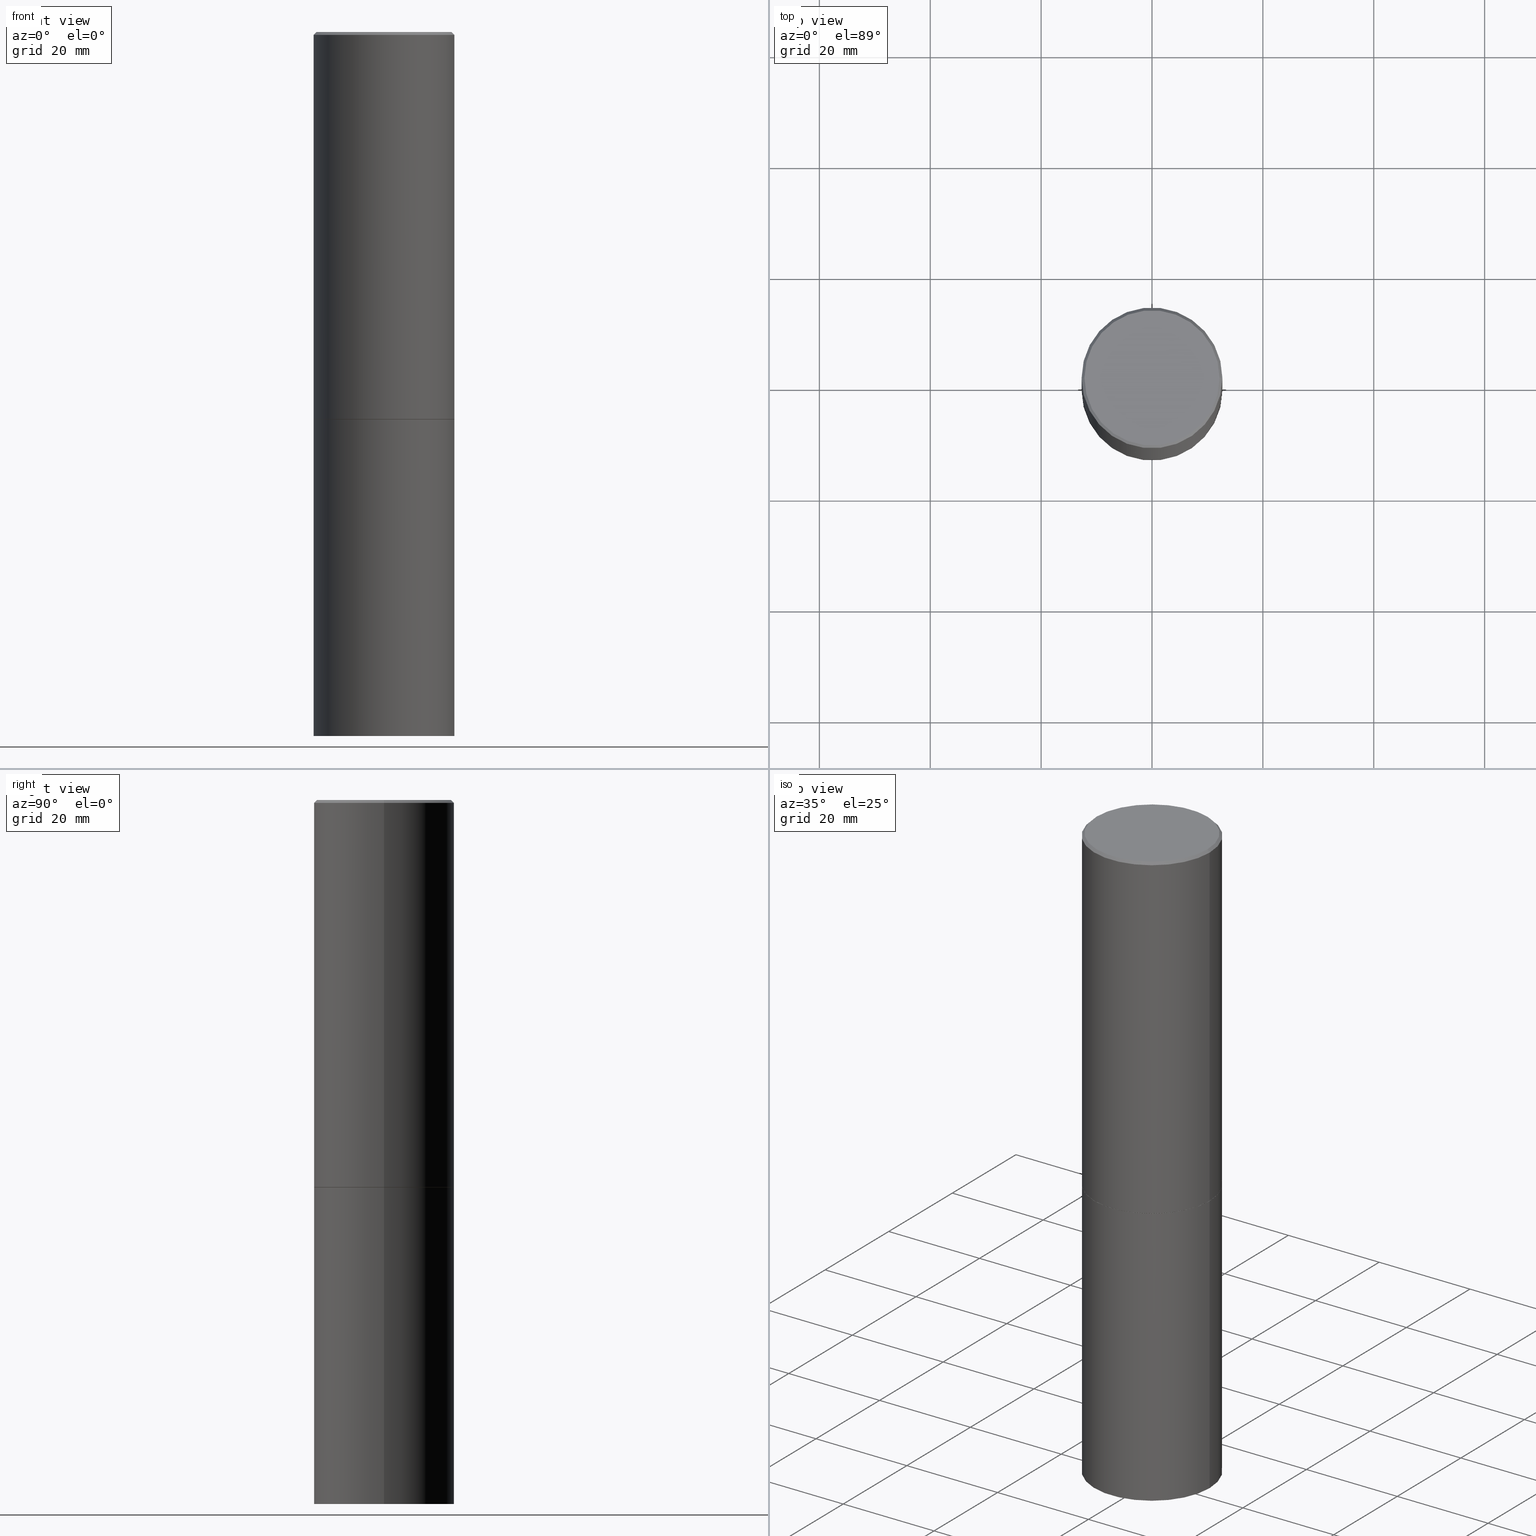
[diagram: canonical four-view strip — front | top / right | iso, engineering-drawing reading convention]
A machine part, canonical four-view strip (front | top / right | iso — engineering-drawing reading convention). The complete STEP part file that produces these views, byte-faithful:
ISO-10303-21;
HEADER;
FILE_DESCRIPTION (( 'STEP AP203' ),
    '1' );
FILE_NAME ('33317.STEP',
    '2024-02-27T15:50:25',
    ( '' ),
    ( '' ),
    'SwSTEP 2.0',
    'SolidWorks 2023',
    '' );
FILE_SCHEMA (( 'CONFIG_CONTROL_DESIGN' ));
ENDSEC;

DATA;
#1 = EDGE_CURVE ( 'NONE', #356, #198, #295, .T. ) ;
#2 = CYLINDRICAL_SURFACE ( 'NONE', #53, 0.5000000000000000000 ) ;
#3 = AXIS2_PLACEMENT_3D ( 'NONE', #353, #324, #297 ) ;
#4 = CIRCLE ( 'NONE', #289, 0.4999999999999996114 ) ;
#5 = DIRECTION ( 'NONE',  ( 1.000000000000000000, -6.982962677686266711E-15, 0.000000000000000000 ) ) ;
#6 = AXIS2_PLACEMENT_3D ( 'NONE', #139, #183, #70 ) ;
#7 = CARTESIAN_POINT ( 'NONE',  ( 6.725039217009124520E-29, -9.601573681818649859E-15, -2.750000000000000000 ) ) ;
#8 = CARTESIAN_POINT ( 'NONE',  ( -0.5000000000000000000, 3.552713678800500929E-15, -2.459467545127452891E-29 ) ) ;
#9 = CARTESIAN_POINT ( 'NONE',  ( -0.5000000000000000000, -9.976776509216688154E-15, -5.000000000000000000 ) ) ;
#10 = EDGE_CURVE ( 'NONE', #327, #366, #241, .T. ) ;
#11 = CARTESIAN_POINT ( 'NONE',  ( 1.222734403092568523E-28, -1.745740669421572989E-14, -5.000000000000000000 ) ) ;
#12 = AXIS2_PLACEMENT_3D ( 'NONE', #42, #152, #115 ) ;
#13 = CARTESIAN_POINT ( 'NONE',  ( 0.000000000000000000, 0.000000000000000000, 0.000000000000000000 ) ) ;
#14 = DIRECTION ( 'NONE',  ( 1.000000000000000000, -6.982962677686266711E-15, 0.000000000000000000 ) ) ;
#15 = CARTESIAN_POINT ( 'NONE',  ( 0.4999999999999996114, -3.500078625662626318E-15, -0.02000000000000010797 ) ) ;
#16 = EDGE_CURVE ( 'NONE', #327, #108, #132, .T. ) ;
#17 = AXIS2_PLACEMENT_3D ( 'NONE', #176, #219, #271 ) ;
#18 = CIRCLE ( 'NONE', #244, 0.4999999999999996114 ) ;
#19 = APPROVAL ( #62, 'UNSPECIFIED' ) ;
#20 = ORIENTED_EDGE ( 'NONE', *, *, #319, .F. ) ;
#21 = DIRECTION ( 'NONE',  ( 2.438088387897960049E-29, -3.491481338843145188E-15, -1.000000000000000000 ) ) ;
#22 = ORIENTED_EDGE ( 'NONE', *, *, #63, .F. ) ;
#23 = CARTESIAN_POINT ( 'NONE',  ( 0.4989999999999999991, -1.308607205798410036E-14, -2.750000000000000444 ) ) ;
#24 = DIRECTION ( 'NONE',  ( -2.445468806185136597E-29, 3.491481338843145583E-15, 1.000000000000000000 ) ) ;
#25 = MECHANICAL_CONTEXT ( 'NONE', #110, 'mechanical' ) ;
#26 = VECTOR ( 'NONE', #64, 39.37007874015748143 ) ;
#27 = EDGE_CURVE ( 'NONE', #366, #125, #350, .T. ) ;
#28 = PERSON_AND_ORGANIZATION ( #136, #112 ) ;
#29 = PERSON_AND_ORGANIZATION_ROLE ( 'design_owner' ) ;
#30 = MANIFOLD_SOLID_BREP ( 'Body-Move/Copy2[2]', #306 ) ;
#31 = DIRECTION ( 'NONE',  ( 2.445468806185136597E-29, -3.491481338843145583E-15, -1.000000000000000000 ) ) ;
#32 = VECTOR ( 'NONE', #178, 39.37007874015748143 ) ;
#33 = LOCAL_TIME ( 10, 50, 25.00000000000000000, #266 ) ;
#34 = DIRECTION ( 'NONE',  ( 2.445468806185136597E-29, -3.491481338843145583E-15, -1.000000000000000000 ) ) ;
#35 = CARTESIAN_POINT ( 'NONE',  ( 0.5000000000000000000, -3.491481338843133355E-15, 2.438088387897967896E-29 ) ) ;
#36 = EDGE_CURVE ( 'NONE', #108, #327, #148, .T. ) ;
#37 = DIRECTION ( 'NONE',  ( -2.445468806185136597E-29, 3.491481338843145583E-15, 1.000000000000000000 ) ) ;
#38 = VERTEX_POINT ( 'NONE', #355 ) ;
#39 = APPROVAL_STATUS ( 'not_yet_approved' ) ;
#40 = EDGE_LOOP ( 'NONE', ( #348, #81, #256, #145 ) ) ;
#41 = CARTESIAN_POINT ( 'NONE',  ( -0.4999999999999996114, 3.421651712066267296E-15, -0.02000000000000010797 ) ) ;
#42 = CARTESIAN_POINT ( 'NONE',  ( 3.351822085289404392E-15, 0.4799999999999995381, -1.669508273909557670E-15 ) ) ;
#43 = SECURITY_CLASSIFICATION_LEVEL ( 'unclassified' ) ;
#44 = CC_DESIGN_SECURITY_CLASSIFICATION ( #150, ( #202 ) ) ;
#45 = DIRECTION ( 'NONE',  ( -2.438088387897960049E-29, 3.491481338843145188E-15, 1.000000000000000000 ) ) ;
#46 = VECTOR ( 'NONE', #208, 39.37007874015748143 ) ;
#47 = DIRECTION ( 'NONE',  ( 1.000000000000000000, -6.982962677686266711E-15, 4.876036955247133888E-29 ) ) ;
#48 = CC_DESIGN_DATE_AND_TIME_ASSIGNMENT ( #85, #207, ( #248 ) ) ;
#49 = VERTEX_POINT ( 'NONE', #61 ) ;
#50 = CARTESIAN_POINT ( 'NONE',  ( 0.5000000000000000000, -1.309305502066178321E-14, -2.750000000000000000 ) ) ;
#51 = EDGE_LOOP ( 'NONE', ( #187, #230, #126, #69 ) ) ;
#52 = EDGE_CURVE ( 'NONE', #65, #270, #83, .T. ) ;
#53 = AXIS2_PLACEMENT_3D ( 'NONE', #344, #265, #134 ) ;
#54 = DIRECTION ( 'NONE',  ( -2.445468806185136877E-29, 3.491481338843145188E-15, 1.000000000000000000 ) ) ;
#55 = EDGE_LOOP ( 'NONE', ( #159, #86, #82, #22 ) ) ;
#56 = DIRECTION ( 'NONE',  ( 1.000000000000000000, 0.000000000000000000, 0.000000000000000000 ) ) ;
#57 = ADVANCED_FACE ( 'NONE', ( #272 ), #349, .T. ) ;
#58 = APPROVAL_DATE_TIME ( #316, #114 ) ;
#59 = VECTOR ( 'NONE', #54, 39.37007874015748143 ) ;
#60 = APPROVAL_ROLE ( '' ) ;
#61 = CARTESIAN_POINT ( 'NONE',  ( 0.5000000000000001110, -1.308956353932294179E-14, -2.749000000000000110 ) ) ;
#62 = APPROVAL_STATUS ( 'not_yet_approved' ) ;
#63 = EDGE_CURVE ( 'NONE', #270, #49, #95, .T. ) ;
#64 = DIRECTION ( 'NONE',  ( -2.445468806185136877E-29, 3.491481338843145188E-15, 1.000000000000000000 ) ) ;
#65 = VERTEX_POINT ( 'NONE', #268 ) ;
#66 = DIRECTION ( 'NONE',  ( -2.445468806185136877E-29, 3.491481338843145188E-15, 1.000000000000000000 ) ) ;
#67 = DIRECTION ( 'NONE',  ( 1.000000000000000000, -6.982962677686265133E-15, 0.000000000000000000 ) ) ;
#68 = DATE_AND_TIME ( #135, #33 ) ;
#69 = ORIENTED_EDGE ( 'NONE', *, *, #281, .T. ) ;
#70 = DIRECTION ( 'NONE',  ( 1.000000000000000000, -6.982962677686267499E-15, 4.876176775795936353E-29 ) ) ;
#71 = EDGE_LOOP ( 'NONE', ( #73, #169, #96, #192 ) ) ;
#72 = DIRECTION ( 'NONE',  ( -2.445468806185136597E-29, 3.491481338843145583E-15, 1.000000000000000000 ) ) ;
#73 = ORIENTED_EDGE ( 'NONE', *, *, #77, .T. ) ;
#74 = AXIS2_PLACEMENT_3D ( 'NONE', #13, #120, #89 ) ;
#75 = PLANE ( 'NONE',  #343 ) ;
#76 = ORIENTED_EDGE ( 'NONE', *, *, #281, .F. ) ;
#77 = EDGE_CURVE ( 'NONE', #49, #259, #164, .T. ) ;
#78 = CYLINDRICAL_SURFACE ( 'NONE', #203, 0.5000000000000000000 ) ;
#79 = CONICAL_SURFACE ( 'NONE', #216, 0.4989999999999999991, 0.7853981633973118326 ) ;
#80 = DIRECTION ( 'NONE',  ( -2.445468806185136597E-29, 3.491481338843145583E-15, 1.000000000000000000 ) ) ;
#81 = ORIENTED_EDGE ( 'NONE', *, *, #52, .T. ) ;
#82 = ORIENTED_EDGE ( 'NONE', *, *, #77, .F. ) ;
#83 = CIRCLE ( 'NONE', #17, 0.4989999999999999991 ) ;
#84 = DIRECTION ( 'NONE',  ( 1.000000000000000000, -6.982962677686266711E-15, 0.000000000000000000 ) ) ;
#85 = DATE_AND_TIME ( #347, #224 ) ;
#86 = ORIENTED_EDGE ( 'NONE', *, *, #158, .T. ) ;
#87 = ADVANCED_FACE ( 'NONE', ( #186 ), #322, .T. ) ;
#88 = LINE ( 'NONE', #98, #293 ) ;
#89 = DIRECTION ( 'NONE',  ( 1.000000000000000000, -6.982962677686267499E-15, 4.876176775795936353E-29 ) ) ;
#90 = CARTESIAN_POINT ( 'NONE',  ( 6.725039217009125641E-29, -9.601573681818653015E-15, -2.750000000000000444 ) ) ;
#91 = PERSON_AND_ORGANIZATION_ROLE ( 'design_supplier' ) ;
#92 = FACE_OUTER_BOUND ( 'NONE', #287, .T. ) ;
#93 = EDGE_CURVE ( 'NONE', #259, #149, #217, .T. ) ;
#94 = CARTESIAN_POINT ( 'NONE',  ( 4.890937612370299433E-31, -6.982962677686328587E-17, -0.02000000000000010797 ) ) ;
#95 = LINE ( 'NONE', #214, #32 ) ;
#96 = ORIENTED_EDGE ( 'NONE', *, *, #220, .F. ) ;
#97 = CIRCLE ( 'NONE', #358, 0.4799999999999995381 ) ;
#98 = CARTESIAN_POINT ( 'NONE',  ( -0.4999999999999996114, 3.421651712066267296E-15, -0.02000000000000010797 ) ) ;
#99 = PLANE ( 'NONE',  #140 ) ;
#100 = ORIENTED_EDGE ( 'NONE', *, *, #36, .F. ) ;
#101 = EDGE_CURVE ( 'NONE', #125, #366, #223, .T. ) ;
#102 = PRODUCT_DEFINITION_SHAPE ( 'NONE', 'NONE',  #248 ) ;
#103 = ORIENTED_EDGE ( 'NONE', *, *, #16, .F. ) ;
#104 = EDGE_LOOP ( 'NONE', ( #335, #337 ) ) ;
#105 = FACE_OUTER_BOUND ( 'NONE', #111, .T. ) ;
#106 = APPROVAL_PERSON_ORGANIZATION ( #28, #19, #292 ) ;
#107 = CARTESIAN_POINT ( 'NONE',  ( -3.131554243005659264E-46, 4.471029511141341874E-32, 1.280553747030123384E-17 ) ) ;
#108 = VERTEX_POINT ( 'NONE', #9 ) ;
#109 = APPLICATION_PROTOCOL_DEFINITION ( 'international standard', 'config_control_design', 1994, #211 ) ;
#110 = APPLICATION_CONTEXT ( 'configuration controlled 3d designs of mechanical parts and assemblies' ) ;
#111 = EDGE_LOOP ( 'NONE', ( #189, #242, #362, #227 ) ) ;
#112 = ORGANIZATION ( 'UNSPECIFIED', 'UNSPECIFIED', '' ) ;
#113 = EDGE_CURVE ( 'NONE', #270, #65, #215, .T. ) ;
#114 = APPROVAL ( #177, 'UNSPECIFIED' ) ;
#115 = DIRECTION ( 'NONE',  ( -1.000000000000000000, 6.982962677686265922E-15, -4.876176775795935793E-29 ) ) ;
#116 = DESIGN_CONTEXT ( 'detailed design', #211, 'design' ) ;
#117 = CC_DESIGN_PERSON_AND_ORGANIZATION_ASSIGNMENT ( #194, #184, ( #150 ) ) ;
#118 = ORIENTED_EDGE ( 'NONE', *, *, #240, .T. ) ;
#119 = AXIS2_PLACEMENT_3D ( 'NONE', #253, #24, #341 ) ;
#120 = DIRECTION ( 'NONE',  ( -2.445468806185136597E-29, 3.491481338843145583E-15, 1.000000000000000000 ) ) ;
#121 = PERSON_AND_ORGANIZATION ( #136, #112 ) ;
#122 = DIRECTION ( 'NONE',  ( -2.445468806185136597E-29, 3.491481338843145583E-15, 1.000000000000000000 ) ) ;
#123 = ADVANCED_FACE ( 'NONE', ( #92 ), #299, .F. ) ;
#124 = DIRECTION ( 'NONE',  ( 1.000000000000000000, -6.982962677686269077E-15, 0.000000000000000000 ) ) ;
#125 = VERTEX_POINT ( 'NONE', #238 ) ;
#126 = ORIENTED_EDGE ( 'NONE', *, *, #127, .T. ) ;
#127 = EDGE_CURVE ( 'NONE', #38, #149, #88, .T. ) ;
#128 = DIRECTION ( 'NONE',  ( 1.000000000000000000, -6.982962677686266711E-15, 4.876036955247133888E-29 ) ) ;
#129 =( NAMED_UNIT ( * ) PLANE_ANGLE_UNIT ( ) SI_UNIT ( $, .RADIAN. ) );
#130 = APPLICATION_PROTOCOL_DEFINITION ( 'international standard', 'config_control_design', 1994, #110 ) ;
#131 = ADVANCED_FACE ( 'NONE', ( #315 ), #2, .T. ) ;
#132 = CIRCLE ( 'NONE', #258, 0.5000000000000000000 ) ;
#133 = AXIS2_PLACEMENT_3D ( 'NONE', #330, #182, #296 ) ;
#134 = DIRECTION ( 'NONE',  ( 1.000000000000000000, -6.982962677686266711E-15, 4.876176775795935793E-29 ) ) ;
#135 = CALENDAR_DATE ( 2024, 27, 2 ) ;
#136 = PERSON ( 'UNSPECIFIED', 'UNSPECIFIED', 'UNSPECIFIED', ('UNSPECIFIED'), ('UNSPECIFIED'), ('UNSPECIFIED') ) ;
#137 = CC_DESIGN_PERSON_AND_ORGANIZATION_ASSIGNMENT ( #278, #239, ( #202 ) ) ;
#138 = ORIENTED_EDGE ( 'NONE', *, *, #319, .T. ) ;
#139 = CARTESIAN_POINT ( 'NONE',  ( 0.000000000000000000, 0.000000000000000000, 0.000000000000000000 ) ) ;
#140 = AXIS2_PLACEMENT_3D ( 'NONE', #283, #45, #163 ) ;
#141 = LINE ( 'NONE', #8, #156 ) ;
#142 = CARTESIAN_POINT ( 'NONE',  ( -0.4999999999999998335, 3.552713678800499746E-15, -2.459467545127452330E-29 ) ) ;
#143 = DIRECTION ( 'NONE',  ( -2.445468806185136597E-29, 3.491481338843145583E-15, 1.000000000000000000 ) ) ;
#144 = CALENDAR_DATE ( 2024, 27, 2 ) ;
#145 = ORIENTED_EDGE ( 'NONE', *, *, #286, .F. ) ;
#146 = LINE ( 'NONE', #346, #46 ) ;
#147 = DIRECTION ( 'NONE',  ( -2.445468806185136597E-29, 3.491481338843145583E-15, 1.000000000000000000 ) ) ;
#148 = CIRCLE ( 'NONE', #191, 0.5000000000000000000 ) ;
#149 = VERTEX_POINT ( 'NONE', #41 ) ;
#150 = SECURITY_CLASSIFICATION ( '', '', #43 ) ;
#151 = MANIFOLD_SOLID_BREP ( 'Body-Move/Copy2[1]', #234 ) ;
#152 = DIRECTION ( 'NONE',  ( 2.438088387897960049E-29, -3.491481338843145188E-15, -1.000000000000000000 ) ) ;
#153 = CARTESIAN_POINT ( 'NONE',  ( 3.491481338843200408E-15, 0.4999999999999903411, -2.750000000000001332 ) ) ;
#154 = AXIS2_PLACEMENT_3D ( 'NONE', #90, #72, #301 ) ;
#155 = ORIENTED_EDGE ( 'NONE', *, *, #10, .F. ) ;
#156 = VECTOR ( 'NONE', #66, 39.37007874015748143 ) ;
#157 = FACE_OUTER_BOUND ( 'NONE', #104, .T. ) ;
#158 = EDGE_CURVE ( 'NONE', #65, #259, #146, .T. ) ;
#159 = ORIENTED_EDGE ( 'NONE', *, *, #113, .T. ) ;
#160 = CARTESIAN_POINT ( 'NONE',  ( -3.131554243005659264E-46, 4.471029511141341874E-32, 1.280553747030123384E-17 ) ) ;
#161 = EDGE_LOOP ( 'NONE', ( #20, #254, #210, #340 ) ) ;
#162 = DIMENSIONAL_EXPONENTS ( 1.000000000000000000, 0.000000000000000000, 0.000000000000000000, 0.000000000000000000, 0.000000000000000000, 0.000000000000000000, 0.000000000000000000 ) ;
#163 = DIRECTION ( 'NONE',  ( 1.000000000000000000, -6.982962677686265922E-15, 4.876176775795935793E-29 ) ) ;
#164 = CIRCLE ( 'NONE', #170, 0.5000000000000001110 ) ;
#165 = CC_DESIGN_APPROVAL ( #304, ( #150 ) ) ;
#166 = EDGE_LOOP ( 'NONE', ( #310, #232, #282, #155 ) ) ;
#167 = CC_DESIGN_PERSON_AND_ORGANIZATION_ASSIGNMENT ( #172, #290, ( #248 ) ) ;
#168 = CALENDAR_DATE ( 2024, 27, 2 ) ;
#169 = ORIENTED_EDGE ( 'NONE', *, *, #93, .T. ) ;
#170 = AXIS2_PLACEMENT_3D ( 'NONE', #246, #243, #67 ) ;
#171 = LOCAL_TIME ( 10, 50, 25.00000000000000000, #237 ) ;
#172 = PERSON_AND_ORGANIZATION ( #136, #112 ) ;
#173 = CC_DESIGN_PERSON_AND_ORGANIZATION_ASSIGNMENT ( #298, #91, ( #202 ) ) ;
#174 = COORDINATED_UNIVERSAL_TIME_OFFSET ( 5, 0, .BEHIND. ) ;
#175 = DIRECTION ( 'NONE',  ( -1.000000000000000000, 6.982962677686266711E-15, 0.000000000000000000 ) ) ;
#176 = CARTESIAN_POINT ( 'NONE',  ( 6.725039217009125641E-29, -9.601573681818653015E-15, -2.750000000000000444 ) ) ;
#177 = APPROVAL_STATUS ( 'not_yet_approved' ) ;
#178 = DIRECTION ( 'NONE',  ( 0.7071067811864509833, -2.468850131081245741E-15, 0.7071067811866440511 ) ) ;
#179 = VECTOR ( 'NONE', #275, 39.37007874015748143 ) ;
#180 =( GEOMETRIC_REPRESENTATION_CONTEXT ( 3 ) GLOBAL_UNCERTAINTY_ASSIGNED_CONTEXT ( ( #221 ) ) GLOBAL_UNIT_ASSIGNED_CONTEXT ( ( #257, #129, #359 ) ) REPRESENTATION_CONTEXT ( 'NONE', 'WORKASPACE' ) );
#181 = ORIENTED_EDGE ( 'NONE', *, *, #286, .T. ) ;
#182 = DIRECTION ( 'NONE',  ( 2.438088387897960049E-29, -3.491481338843145188E-15, -1.000000000000000000 ) ) ;
#183 = DIRECTION ( 'NONE',  ( -2.445468806185136597E-29, 3.491481338843145583E-15, 1.000000000000000000 ) ) ;
#184 = PERSON_AND_ORGANIZATION_ROLE ( 'classification_officer' ) ;
#185 = ADVANCED_FACE ( 'NONE', ( #274 ), #231, .T. ) ;
#186 = FACE_OUTER_BOUND ( 'NONE', #55, .T. ) ;
#187 = ORIENTED_EDGE ( 'NONE', *, *, #1, .F. ) ;
#188 = FACE_OUTER_BOUND ( 'NONE', #71, .T. ) ;
#189 = ORIENTED_EDGE ( 'NONE', *, *, #193, .F. ) ;
#190 = APPROVAL_ROLE ( '' ) ;
#191 = AXIS2_PLACEMENT_3D ( 'NONE', #206, #328, #331 ) ;
#192 = ORIENTED_EDGE ( 'NONE', *, *, #240, .F. ) ;
#193 = EDGE_CURVE ( 'NONE', #108, #125, #141, .T. ) ;
#194 = PERSON_AND_ORGANIZATION ( #136, #112 ) ;
#195 = CARTESIAN_POINT ( 'NONE',  ( 4.890937612370299433E-31, -6.982962677686328587E-17, -0.02000000000000010797 ) ) ;
#196 = ADVANCED_FACE ( 'NONE', ( #188 ), #291, .T. ) ;
#197 = AXIS2_PLACEMENT_3D ( 'NONE', #249, #122, #84 ) ;
#198 = VERTEX_POINT ( 'NONE', #323 ) ;
#199 = AXIS2_PLACEMENT_3D ( 'NONE', #354, #34, #175 ) ;
#200 = CARTESIAN_POINT ( 'NONE',  ( 0.5000000000000000000, -2.094888803305886324E-14, -5.000000000000000000 ) ) ;
#201 = ADVANCED_FACE ( 'NONE', ( #245 ), #352, .T. ) ;
#202 = PRODUCT_DEFINITION_FORMATION_WITH_SPECIFIED_SOURCE ( 'ANY', '', #228, .NOT_KNOWN. ) ;
#203 = AXIS2_PLACEMENT_3D ( 'NONE', #280, #80, #365 ) ;
#204 = PERSON_AND_ORGANIZATION ( #136, #112 ) ;
#205 = EDGE_LOOP ( 'NONE', ( #329, #225 ) ) ;
#206 = CARTESIAN_POINT ( 'NONE',  ( 1.222734403092568523E-28, -1.745740669421572989E-14, -5.000000000000000000 ) ) ;
#207 = DATE_TIME_ROLE ( 'creation_date' ) ;
#208 = DIRECTION ( 'NONE',  ( -0.7071067811864509833, 7.493145998870005484E-15, 0.7071067811866440511 ) ) ;
#209 = DIRECTION ( 'NONE',  ( 1.000000000000000000, -6.982962677686266711E-15, 0.000000000000000000 ) ) ;
#210 = ORIENTED_EDGE ( 'NONE', *, *, #220, .T. ) ;
#211 = APPLICATION_CONTEXT ( 'configuration controlled 3d designs of mechanical parts and assemblies' ) ;
#212 = PLANE ( 'NONE',  #133 ) ;
#213 = ADVANCED_FACE ( 'NONE', ( #218 ), #212, .T. ) ;
#214 = CARTESIAN_POINT ( 'NONE',  ( 0.4989999999999999991, -1.308607205798410036E-14, -2.750000000000000444 ) ) ;
#215 = CIRCLE ( 'NONE', #3, 0.4989999999999999991 ) ;
#216 = AXIS2_PLACEMENT_3D ( 'NONE', #334, #262, #124 ) ;
#217 = LINE ( 'NONE', #142, #26 ) ;
#218 = FACE_OUTER_BOUND ( 'NONE', #360, .T. ) ;
#219 = DIRECTION ( 'NONE',  ( -2.445468806185136597E-29, 3.491481338843145583E-15, 1.000000000000000000 ) ) ;
#220 = EDGE_CURVE ( 'NONE', #198, #149, #18, .T. ) ;
#221 = UNCERTAINTY_MEASURE_WITH_UNIT (LENGTH_MEASURE( 1.000000000000000082E-05 ), #257, 'distance_accuracy_value', 'NONE');
#222 = DATE_TIME_ROLE ( 'classification_date' ) ;
#223 = CIRCLE ( 'NONE', #251, 0.5000000000000000000 ) ;
#224 = LOCAL_TIME ( 10, 50, 25.00000000000000000, #174 ) ;
#225 = ORIENTED_EDGE ( 'NONE', *, *, #101, .T. ) ;
#226 =( LENGTH_UNIT ( ) NAMED_UNIT ( * ) SI_UNIT ( $, .METRE. ) );
#227 = ORIENTED_EDGE ( 'NONE', *, *, #101, .F. ) ;
#228 = PRODUCT ( '33317', '33317', '', ( #25 ) ) ;
#229 = CARTESIAN_POINT ( 'NONE',  ( 0.4999999999999998335, -3.491481338843132566E-15, 2.438088387897967336E-29 ) ) ;
#230 = ORIENTED_EDGE ( 'NONE', *, *, #255, .F. ) ;
#231 = CONICAL_SURFACE ( 'NONE', #199, 0.4999999999999996114, 0.7853981633974468357 ) ;
#232 = ORIENTED_EDGE ( 'NONE', *, *, #193, .T. ) ;
#233 = DIRECTION ( 'NONE',  ( -2.445468806185136597E-29, 3.491481338843145583E-15, 1.000000000000000000 ) ) ;
#234 = CLOSED_SHELL ( 'NONE', ( #131, #213, #313, #284 ) ) ;
#235 = APPROVAL_PERSON_ORGANIZATION ( #318, #114, #60 ) ;
#236 = ADVANCED_BREP_SHAPE_REPRESENTATION ( '33317', ( #151, #30, #338 ), #180 ) ;
#237 = COORDINATED_UNIVERSAL_TIME_OFFSET ( 5, 0, .BEHIND. ) ;
#238 = CARTESIAN_POINT ( 'NONE',  ( -0.5000000000000000000, -9.976776509216688154E-15, -2.750000000000000000 ) ) ;
#239 = PERSON_AND_ORGANIZATION_ROLE ( 'creator' ) ;
#240 = EDGE_CURVE ( 'NONE', #49, #198, #364, .T. ) ;
#241 = LINE ( 'NONE', #35, #179 ) ;
#242 = ORIENTED_EDGE ( 'NONE', *, *, #36, .T. ) ;
#243 = DIRECTION ( 'NONE',  ( -2.445468806185136597E-29, 3.491481338843145583E-15, 1.000000000000000000 ) ) ;
#244 = AXIS2_PLACEMENT_3D ( 'NONE', #267, #37, #5 ) ;
#245 = FACE_OUTER_BOUND ( 'NONE', #51, .T. ) ;
#246 = CARTESIAN_POINT ( 'NONE',  ( 6.722593748202941159E-29, -9.598082200479808430E-15, -2.749000000000000110 ) ) ;
#247 = SHAPE_DEFINITION_REPRESENTATION ( #102, #236 ) ;
#248 = PRODUCT_DEFINITION ( 'UNKNOWN', '', #202, #116 ) ;
#249 = CARTESIAN_POINT ( 'NONE',  ( 6.725039217009124520E-29, -9.601573681818649859E-15, -2.750000000000000000 ) ) ;
#250 = APPROVAL_DATE_TIME ( #68, #19 ) ;
#251 = AXIS2_PLACEMENT_3D ( 'NONE', #7, #147, #209 ) ;
#252 = CC_DESIGN_APPROVAL ( #19, ( #202 ) ) ;
#253 = CARTESIAN_POINT ( 'NONE',  ( 6.722593748202941159E-29, -9.598082200479808430E-15, -2.749000000000000110 ) ) ;
#254 = ORIENTED_EDGE ( 'NONE', *, *, #1, .T. ) ;
#255 = EDGE_CURVE ( 'NONE', #38, #356, #97, .T. ) ;
#256 = ORIENTED_EDGE ( 'NONE', *, *, #63, .T. ) ;
#257 =( CONVERSION_BASED_UNIT ( 'INCH', #261 ) LENGTH_UNIT ( ) NAMED_UNIT ( #162 ) );
#258 = AXIS2_PLACEMENT_3D ( 'NONE', #11, #143, #14 ) ;
#259 = VERTEX_POINT ( 'NONE', #311 ) ;
#260 = ADVANCED_FACE ( 'NONE', ( #307 ), #79, .T. ) ;
#261 = LENGTH_MEASURE_WITH_UNIT ( LENGTH_MEASURE( 0.02539999999999999897 ), #226 );
#262 = DIRECTION ( 'NONE',  ( -2.445468806185136597E-29, 3.491481338843145583E-15, 1.000000000000000000 ) ) ;
#263 = DIRECTION ( 'NONE',  ( -0.7071067811865464625, 2.468850131082245622E-15, -0.7071067811865485719 ) ) ;
#264 = ORIENTED_EDGE ( 'NONE', *, *, #255, .T. ) ;
#265 = DIRECTION ( 'NONE',  ( -2.445468806185136597E-29, 3.491481338843145583E-15, 1.000000000000000000 ) ) ;
#266 = COORDINATED_UNIVERSAL_TIME_OFFSET ( 5, 0, .BEHIND. ) ;
#267 = CARTESIAN_POINT ( 'NONE',  ( 4.890937612370299433E-31, -6.982962677686328587E-17, -0.02000000000000010797 ) ) ;
#268 = CARTESIAN_POINT ( 'NONE',  ( -0.4989999999999999991, -6.050666976027529114E-15, -2.750000000000000444 ) ) ;
#269 = DATE_AND_TIME ( #276, #294 ) ;
#270 = VERTEX_POINT ( 'NONE', #23 ) ;
#271 = DIRECTION ( 'NONE',  ( 1.000000000000000000, -6.982962677686269077E-15, 0.000000000000000000 ) ) ;
#272 = FACE_OUTER_BOUND ( 'NONE', #273, .T. ) ;
#273 = EDGE_LOOP ( 'NONE', ( #279, #181, #118, #76 ) ) ;
#274 = FACE_OUTER_BOUND ( 'NONE', #161, .T. ) ;
#275 = DIRECTION ( 'NONE',  ( -2.445468806185136877E-29, 3.491481338843145188E-15, 1.000000000000000000 ) ) ;
#276 = CALENDAR_DATE ( 2024, 27, 2 ) ;
#277 = CC_DESIGN_APPROVAL ( #114, ( #248 ) ) ;
#278 = PERSON_AND_ORGANIZATION ( #136, #112 ) ;
#279 = ORIENTED_EDGE ( 'NONE', *, *, #93, .F. ) ;
#280 = CARTESIAN_POINT ( 'NONE',  ( 0.000000000000000000, 0.000000000000000000, 0.000000000000000000 ) ) ;
#281 = EDGE_CURVE ( 'NONE', #149, #198, #4, .T. ) ;
#282 = ORIENTED_EDGE ( 'NONE', *, *, #27, .F. ) ;
#283 = CARTESIAN_POINT ( 'NONE',  ( 6.725039217009124520E-29, -9.601573681818649859E-15, -2.750000000000000000 ) ) ;
#284 = ADVANCED_FACE ( 'NONE', ( #105 ), #78, .T. ) ;
#285 = DIRECTION ( 'NONE',  ( -2.445468806185136597E-29, 3.491481338843145583E-15, 1.000000000000000000 ) ) ;
#286 = EDGE_CURVE ( 'NONE', #259, #49, #303, .T. ) ;
#287 = EDGE_LOOP ( 'NONE', ( #264, #138 ) ) ;
#288 = AXIS2_PLACEMENT_3D ( 'NONE', #107, #285, #47 ) ;
#289 = AXIS2_PLACEMENT_3D ( 'NONE', #195, #233, #361 ) ;
#290 = PERSON_AND_ORGANIZATION_ROLE ( 'creator' ) ;
#291 = CYLINDRICAL_SURFACE ( 'NONE', #74, 0.4999999999999998335 ) ;
#292 = APPROVAL_ROLE ( '' ) ;
#293 = VECTOR ( 'NONE', #263, 39.37007874015748143 ) ;
#294 = LOCAL_TIME ( 10, 50, 25.00000000000000000, #325 ) ;
#295 = LINE ( 'NONE', #15, #332 ) ;
#296 = DIRECTION ( 'NONE',  ( -1.000000000000000000, 6.982962677686265922E-15, -4.876176775795935793E-29 ) ) ;
#297 = DIRECTION ( 'NONE',  ( 1.000000000000000000, -6.982962677686269077E-15, 0.000000000000000000 ) ) ;
#298 = PERSON_AND_ORGANIZATION ( #136, #112 ) ;
#299 = PLANE ( 'NONE',  #12 ) ;
#300 = DIRECTION ( 'NONE',  ( -1.000000000000000000, 6.982962677686266711E-15, 0.000000000000000000 ) ) ;
#301 = DIRECTION ( 'NONE',  ( 1.000000000000000000, -6.982962677686269077E-15, 0.000000000000000000 ) ) ;
#302 = DATE_AND_TIME ( #144, #363 ) ;
#303 = CIRCLE ( 'NONE', #119, 0.5000000000000001110 ) ;
#304 = APPROVAL ( #39, 'UNSPECIFIED' ) ;
#305 = DIRECTION ( 'NONE',  ( -2.445468806185136597E-29, 3.491481338843145583E-15, 1.000000000000000000 ) ) ;
#306 = CLOSED_SHELL ( 'NONE', ( #87, #196, #185, #201, #57, #260, #351, #123 ) ) ;
#307 = FACE_OUTER_BOUND ( 'NONE', #40, .T. ) ;
#308 = CARTESIAN_POINT ( 'NONE',  ( 0.4799999999999995381, -3.396558832296479338E-15, 1.280553747032483033E-17 ) ) ;
#309 = CC_DESIGN_PERSON_AND_ORGANIZATION_ASSIGNMENT ( #204, #29, ( #228 ) ) ;
#310 = ORIENTED_EDGE ( 'NONE', *, *, #16, .T. ) ;
#311 = CARTESIAN_POINT ( 'NONE',  ( -0.5000000000000001110, -1.281242234827831779E-15, -2.749000000000000110 ) ) ;
#312 = CIRCLE ( 'NONE', #288, 0.4799999999999995381 ) ;
#313 = ADVANCED_FACE ( 'NONE', ( #339 ), #75, .F. ) ;
#314 = CARTESIAN_POINT ( 'NONE',  ( 0.000000000000000000, 0.000000000000000000, 0.000000000000000000 ) ) ;
#315 = FACE_OUTER_BOUND ( 'NONE', #166, .T. ) ;
#316 = DATE_AND_TIME ( #168, #171 ) ;
#317 = AXIS2_PLACEMENT_3D ( 'NONE', #94, #31, #300 ) ;
#318 = PERSON_AND_ORGANIZATION ( #136, #112 ) ;
#319 = EDGE_CURVE ( 'NONE', #356, #38, #312, .T. ) ;
#320 = DIRECTION ( 'NONE',  ( 0.7071067811865464625, -7.319954787623252890E-15, -0.7071067811865485719 ) ) ;
#321 = APPROVAL_DATE_TIME ( #302, #304 ) ;
#322 = CONICAL_SURFACE ( 'NONE', #154, 0.4989999999999999991, 0.7853981633973118326 ) ;
#323 = CARTESIAN_POINT ( 'NONE',  ( 0.4999999999999996114, -3.500078625662626318E-15, -0.02000000000000010797 ) ) ;
#324 = DIRECTION ( 'NONE',  ( -2.445468806185136597E-29, 3.491481338843145583E-15, 1.000000000000000000 ) ) ;
#325 = COORDINATED_UNIVERSAL_TIME_OFFSET ( 5, 0, .BEHIND. ) ;
#326 = PRODUCT_RELATED_PRODUCT_CATEGORY ( 'detail', '', ( #228 ) ) ;
#327 = VERTEX_POINT ( 'NONE', #200 ) ;
#328 = DIRECTION ( 'NONE',  ( -2.445468806185136597E-29, 3.491481338843145583E-15, 1.000000000000000000 ) ) ;
#329 = ORIENTED_EDGE ( 'NONE', *, *, #27, .T. ) ;
#330 = CARTESIAN_POINT ( 'NONE',  ( 3.491481338843255234E-15, 0.4999999999999825140, -5.000000000000002665 ) ) ;
#331 = DIRECTION ( 'NONE',  ( 1.000000000000000000, -6.982962677686266711E-15, 0.000000000000000000 ) ) ;
#332 = VECTOR ( 'NONE', #320, 39.37007874015748143 ) ;
#333 = APPROVAL_PERSON_ORGANIZATION ( #121, #304, #190 ) ;
#334 = CARTESIAN_POINT ( 'NONE',  ( 6.725039217009125641E-29, -9.601573681818653015E-15, -2.750000000000000444 ) ) ;
#335 = ORIENTED_EDGE ( 'NONE', *, *, #113, .F. ) ;
#336 = DIRECTION ( 'NONE',  ( -1.000000000000000000, 6.982962677686265922E-15, -4.876176775795935793E-29 ) ) ;
#337 = ORIENTED_EDGE ( 'NONE', *, *, #52, .F. ) ;
#338 = AXIS2_PLACEMENT_3D ( 'NONE', #314, #342, #56 ) ;
#339 = FACE_OUTER_BOUND ( 'NONE', #205, .T. ) ;
#340 = ORIENTED_EDGE ( 'NONE', *, *, #127, .F. ) ;
#341 = DIRECTION ( 'NONE',  ( 1.000000000000000000, -6.982962677686265133E-15, 0.000000000000000000 ) ) ;
#342 = DIRECTION ( 'NONE',  ( 0.000000000000000000, 0.000000000000000000, 1.000000000000000000 ) ) ;
#343 = AXIS2_PLACEMENT_3D ( 'NONE', #153, #21, #336 ) ;
#344 = CARTESIAN_POINT ( 'NONE',  ( 0.000000000000000000, 0.000000000000000000, 0.000000000000000000 ) ) ;
#345 = CC_DESIGN_DATE_AND_TIME_ASSIGNMENT ( #269, #222, ( #150 ) ) ;
#346 = CARTESIAN_POINT ( 'NONE',  ( -0.4989999999999999991, -6.055965430375752305E-15, -2.750000000000000444 ) ) ;
#347 = CALENDAR_DATE ( 2024, 27, 2 ) ;
#348 = ORIENTED_EDGE ( 'NONE', *, *, #158, .F. ) ;
#349 = CYLINDRICAL_SURFACE ( 'NONE', #6, 0.4999999999999998335 ) ;
#350 = CIRCLE ( 'NONE', #197, 0.5000000000000000000 ) ;
#351 = ADVANCED_FACE ( 'NONE', ( #157 ), #99, .F. ) ;
#352 = CONICAL_SURFACE ( 'NONE', #317, 0.4999999999999996114, 0.7853981633974468357 ) ;
#353 = CARTESIAN_POINT ( 'NONE',  ( 6.725039217009125641E-29, -9.601573681818653015E-15, -2.750000000000000444 ) ) ;
#354 = CARTESIAN_POINT ( 'NONE',  ( 4.890937612370299433E-31, -6.982962677686328587E-17, -0.02000000000000010797 ) ) ;
#355 = CARTESIAN_POINT ( 'NONE',  ( -0.4799999999999995381, 3.386736898677836041E-15, 1.280553747027767124E-17 ) ) ;
#356 = VERTEX_POINT ( 'NONE', #308 ) ;
#357 = COORDINATED_UNIVERSAL_TIME_OFFSET ( 5, 0, .BEHIND. ) ;
#358 = AXIS2_PLACEMENT_3D ( 'NONE', #160, #305, #128 ) ;
#359 =( NAMED_UNIT ( * ) SI_UNIT ( $, .STERADIAN. ) SOLID_ANGLE_UNIT ( ) );
#360 = EDGE_LOOP ( 'NONE', ( #103, #100 ) ) ;
#361 = DIRECTION ( 'NONE',  ( 1.000000000000000000, -6.982962677686266711E-15, 0.000000000000000000 ) ) ;
#362 = ORIENTED_EDGE ( 'NONE', *, *, #10, .T. ) ;
#363 = LOCAL_TIME ( 10, 50, 25.00000000000000000, #357 ) ;
#364 = LINE ( 'NONE', #229, #59 ) ;
#365 = DIRECTION ( 'NONE',  ( 1.000000000000000000, -6.982962677686266711E-15, 4.876176775795935793E-29 ) ) ;
#366 = VERTEX_POINT ( 'NONE', #50 ) ;
ENDSEC;
END-ISO-10303-21;
